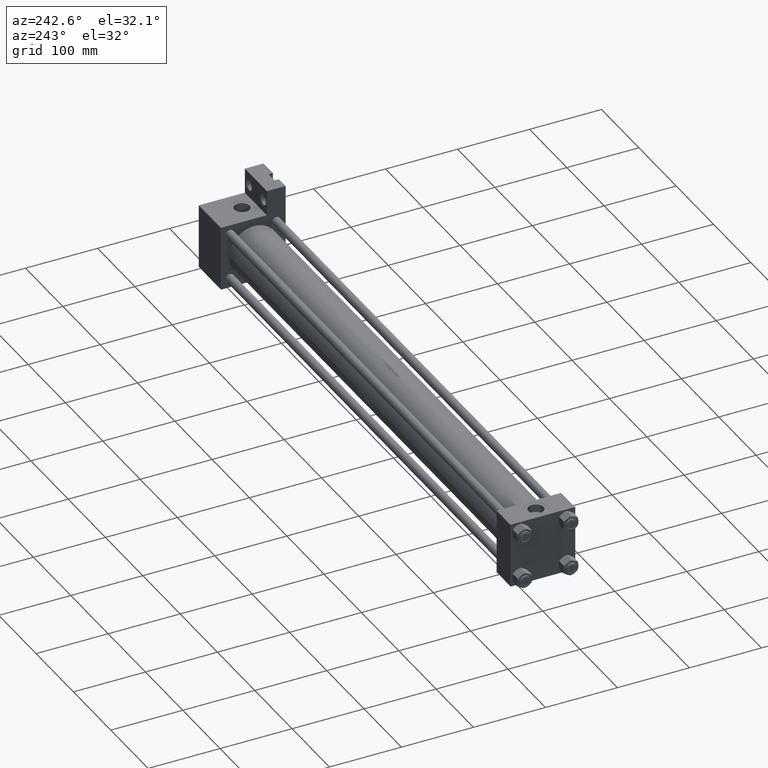
[diagram: clean part render]
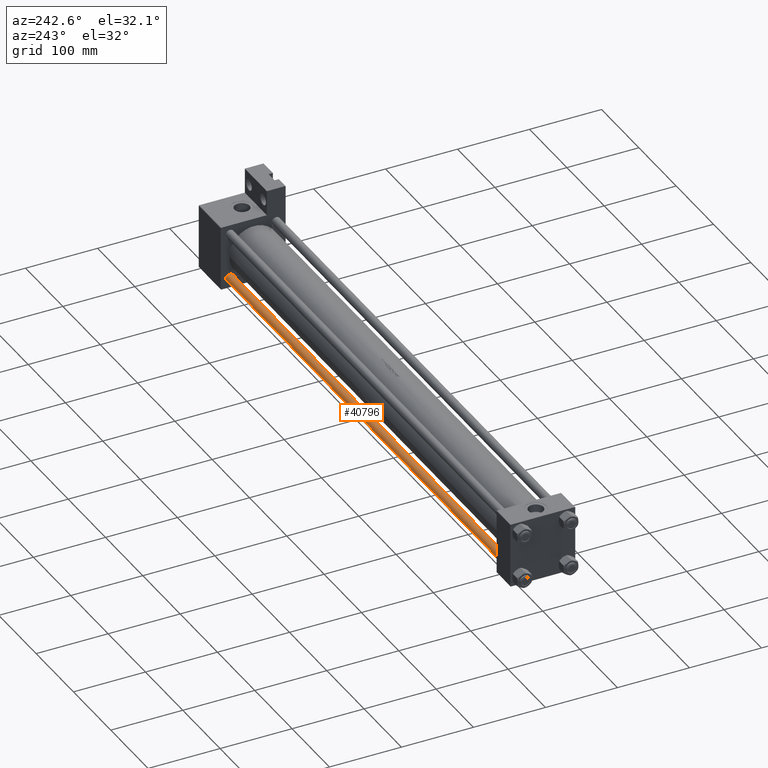
[diagram: same view with one face highlighted and labeled with its STEP entity id]
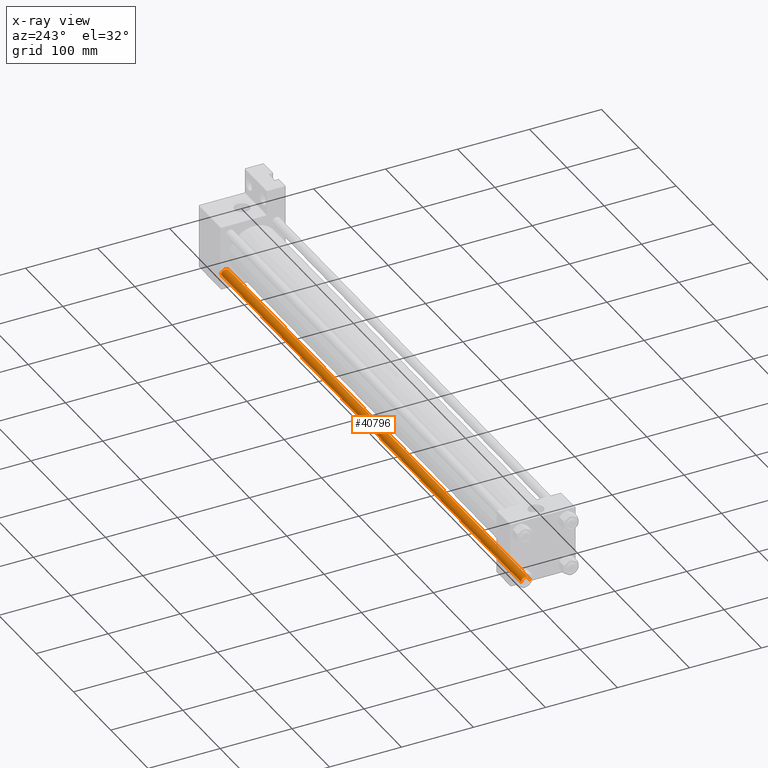
[diagram: x-ray of the same camera — body ghosted, the highlighted face saturated]
A machine part, auxiliary view. The second image highlights one B-rep face of the part: STEP entity #40796.
The next image is the same camera in x-ray: the body ghosted, the highlighted face saturated — about 0% of this face is hidden behind the body in this view.
In plain terms, the highlighted cylindrical surface (edge-blend (fillet) strip) has radius 6 mm, axis along (-1, -0, 0).
Its self-contained STEP definition (entity closure, byte-faithful):
#269 = DIRECTION ( 'NONE',  ( 1.000000000000000000, 0.000000000000000000, 0.000000000000000000 ) ) ;
#1816 = AXIS2_PLACEMENT_3D ( 'NONE', #3720, #25624, #46896 ) ;
#3720 = CARTESIAN_POINT ( 'NONE',  ( 0.000000000000000000, 0.000000000000000000, 804.5000000000002274 ) ) ;
#4224 = VECTOR ( 'NONE', #6424, 1000.000000000000000 ) ;
#4543 = EDGE_CURVE ( 'NONE', #21858, #26365, #33215, .T. ) ;
#6424 = DIRECTION ( 'NONE',  ( -0.000000000000000000, -0.000000000000000000, -1.000000000000000000 ) ) ;
#9916 = AXIS2_PLACEMENT_3D ( 'NONE', #33500, #40744, #269 ) ;
#10464 = DIRECTION ( 'NONE',  ( -1.000000000000000000, 0.000000000000000000, 0.000000000000000000 ) ) ;
#10498 = CARTESIAN_POINT ( 'NONE',  ( 6.000000000000000888, 7.347880794884120722E-16, 0.5000000000000559552 ) ) ;
#11501 = VERTEX_POINT ( 'NONE', #33735 ) ;
#11944 = EDGE_CURVE ( 'NONE', #26365, #18378, #35593, .T. ) ;
#12346 = ORIENTED_EDGE ( 'NONE', *, *, #45579, .F. ) ;
#15271 = CARTESIAN_POINT ( 'NONE',  ( -6.000000000000000888, 0.000000000000000000, 805.0000000000000000 ) ) ;
#18365 = CIRCLE ( 'NONE', #9916, 6.000000000000000888 ) ;
#18378 = VERTEX_POINT ( 'NONE', #10498 ) ;
#21610 = CARTESIAN_POINT ( 'NONE',  ( -6.000000000000000888, 0.000000000000000000, 804.5000000000002274 ) ) ;
#21858 = VERTEX_POINT ( 'NONE', #21610 ) ;
#23695 = ORIENTED_EDGE ( 'NONE', *, *, #4543, .T. ) ;
#25211 = EDGE_CURVE ( 'NONE', #18378, #11501, #18365, .T. ) ;
#25624 = DIRECTION ( 'NONE',  ( 0.000000000000000000, 0.000000000000000000, -1.000000000000000000 ) ) ;
#26365 = VERTEX_POINT ( 'NONE', #32732 ) ;
#28300 = CARTESIAN_POINT ( 'NONE',  ( 0.000000000000000000, 0.000000000000000000, 805.0000000000000000 ) ) ;
#29963 = LINE ( 'NONE', #15271, #38916 ) ;
#32163 = FACE_OUTER_BOUND ( 'NONE', #45984, .T. ) ;
#32631 = DIRECTION ( 'NONE',  ( -0.000000000000000000, -0.000000000000000000, -1.000000000000000000 ) ) ;
#32732 = CARTESIAN_POINT ( 'NONE',  ( 6.000000000000000888, 7.347880794884120722E-16, 804.5000000000002274 ) ) ;
#33215 = CIRCLE ( 'NONE', #1816, 6.000000000000000888 ) ;
#33500 = CARTESIAN_POINT ( 'NONE',  ( 0.000000000000000000, 0.000000000000000000, 0.5000000000000559552 ) ) ;
#33735 = CARTESIAN_POINT ( 'NONE',  ( -6.000000000000000888, 0.000000000000000000, 0.5000000000000559552 ) ) ;
#34729 = ORIENTED_EDGE ( 'NONE', *, *, #25211, .T. ) ;
#34869 = CARTESIAN_POINT ( 'NONE',  ( 6.000000000000000888, 7.347880794884120722E-16, 805.0000000000000000 ) ) ;
#35593 = LINE ( 'NONE', #34869, #4224 ) ;
#37920 = DIRECTION ( 'NONE',  ( -0.000000000000000000, -0.000000000000000000, -1.000000000000000000 ) ) ;
#38916 = VECTOR ( 'NONE', #37920, 1000.000000000000000 ) ;
#39647 = CYLINDRICAL_SURFACE ( 'NONE', #43402, 6.000000000000000888 ) ;
#40744 = DIRECTION ( 'NONE',  ( -0.000000000000000000, -0.000000000000000000, 1.000000000000000000 ) ) ;
#40796 = ADVANCED_FACE ( 'NONE', ( #32163 ), #39647, .T. ) ;
#43364 = ORIENTED_EDGE ( 'NONE', *, *, #11944, .T. ) ;
#43402 = AXIS2_PLACEMENT_3D ( 'NONE', #28300, #32631, #10464 ) ;
#45579 = EDGE_CURVE ( 'NONE', #21858, #11501, #29963, .T. ) ;
#45984 = EDGE_LOOP ( 'NONE', ( #23695, #43364, #34729, #12346 ) ) ;
#46896 = DIRECTION ( 'NONE',  ( 1.000000000000000000, 0.000000000000000000, 0.000000000000000000 ) ) ;